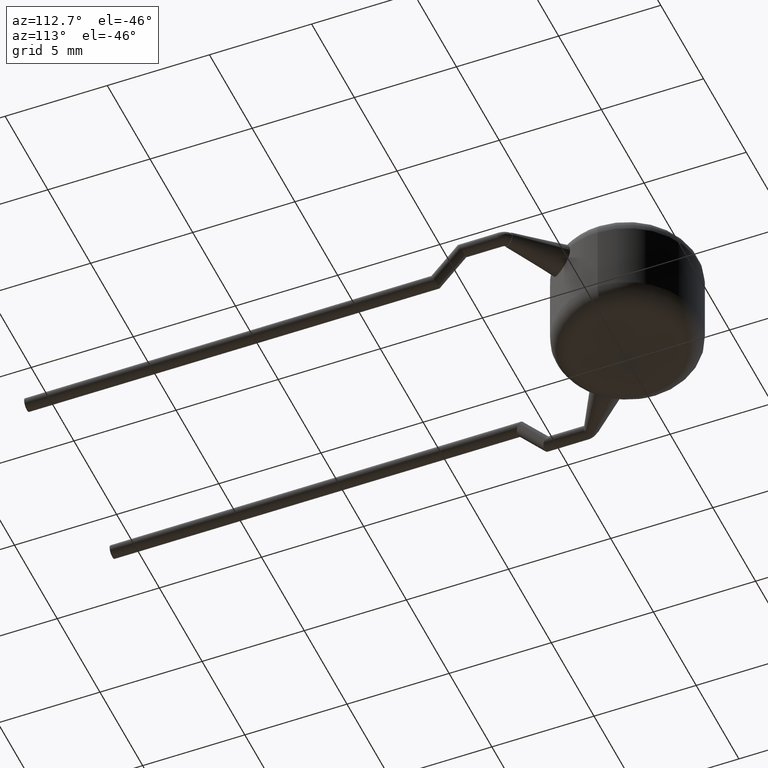
[diagram: clean part render]
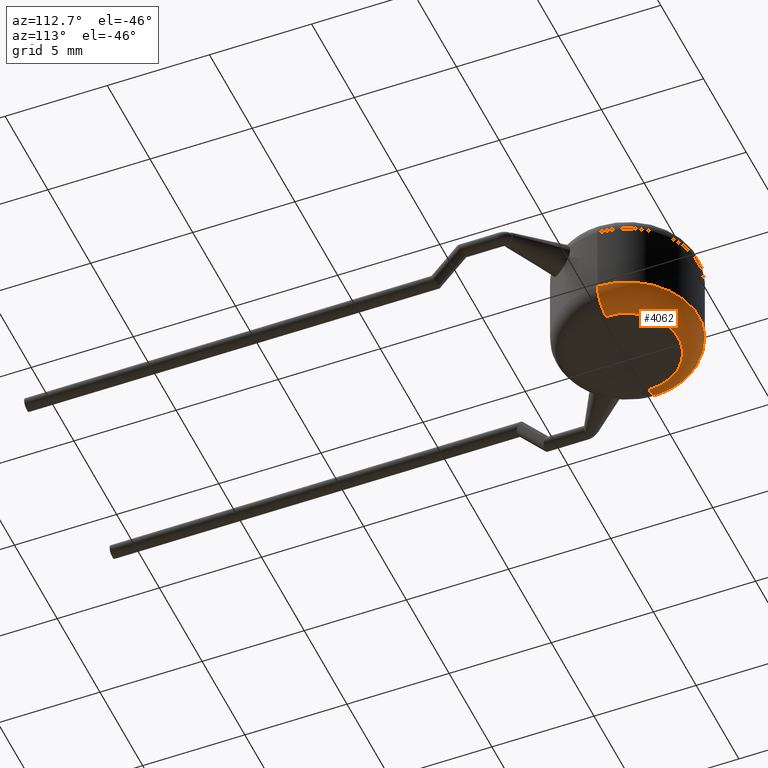
[diagram: same view with one face highlighted and labeled with its STEP entity id]
A machine part, auxiliary view. The second image highlights one B-rep face of the part: STEP entity #4062.
In plain terms, the highlighted toroidal blend (fillet) surface has major radius 2.5 mm and minor (blend) radius 1 mm.
Its self-contained STEP definition (entity closure, byte-faithful):
#36 = CARTESIAN_POINT ( 'NONE',  ( 0.0000000000000000000, 0.0000000000000000000, 0.0000000000000000000 ) ) ;
#196 = ORIENTED_EDGE ( 'NONE', *, *, #448, .T. ) ;
#211 = TOROIDAL_SURFACE ( 'NONE', #3203, 2.499999999999999600, 1.000000000000000000 ) ;
#213 = DIRECTION ( 'NONE',  ( 1.224646799147353200E-016, 1.000000000000000000, -0.0000000000000000000 ) ) ;
#322 = CARTESIAN_POINT ( 'NONE',  ( -3.499999999999999600, 0.0000000000000000000, 1.000000000000000000 ) ) ;
#393 = DIRECTION ( 'NONE',  ( 0.0000000000000000000, 0.0000000000000000000, 1.000000000000000000 ) ) ;
#448 = EDGE_CURVE ( 'NONE', #1702, #606, #4224, .T. ) ;
#498 = EDGE_CURVE ( 'NONE', #858, #606, #1807, .T. ) ;
#606 = VERTEX_POINT ( 'NONE', #322 ) ;
#622 = EDGE_LOOP ( 'NONE', ( #3338, #196, #714, #1692 ) ) ;
#711 = DIRECTION ( 'NONE',  ( 1.000000000000000000, 0.0000000000000000000, 0.0000000000000000000 ) ) ;
#714 = ORIENTED_EDGE ( 'NONE', *, *, #498, .F. ) ;
#858 = VERTEX_POINT ( 'NONE', #1653 ) ;
#1158 = EDGE_CURVE ( 'NONE', #1702, #1400, #3345, .T. ) ;
#1369 = DIRECTION ( 'NONE',  ( 0.0000000000000000000, -1.000000000000000000, 0.0000000000000000000 ) ) ;
#1400 = VERTEX_POINT ( 'NONE', #3944 ) ;
#1404 = FACE_OUTER_BOUND ( 'NONE', #622, .T. ) ;
#1444 = CARTESIAN_POINT ( 'NONE',  ( -2.499999999999999600, 3.061616997868382600E-016, 1.000000000000000000 ) ) ;
#1475 = DIRECTION ( 'NONE',  ( 1.000000000000000000, 0.0000000000000000000, 0.0000000000000000000 ) ) ;
#1644 = DIRECTION ( 'NONE',  ( -0.0000000000000000000, -0.0000000000000000000, -1.000000000000000000 ) ) ;
#1653 = CARTESIAN_POINT ( 'NONE',  ( 3.499999999999999600, 4.286263797015736100E-016, 1.000000000000000000 ) ) ;
#1692 = ORIENTED_EDGE ( 'NONE', *, *, #3980, .F. ) ;
#1702 = VERTEX_POINT ( 'NONE', #3792 ) ;
#1807 = CIRCLE ( 'NONE', #3100, 3.499999999999999600 ) ;
#1969 = DIRECTION ( 'NONE',  ( 1.000000000000000000, 0.0000000000000000000, 0.0000000000000000000 ) ) ;
#2097 = DIRECTION ( 'NONE',  ( 0.0000000000000000000, 0.0000000000000000000, 1.000000000000000000 ) ) ;
#2148 = DIRECTION ( 'NONE',  ( -1.000000000000000000, 1.224646799147353000E-016, 0.0000000000000000000 ) ) ;
#2272 = CARTESIAN_POINT ( 'NONE',  ( 2.499999999999999600, 0.0000000000000000000, 1.000000000000000000 ) ) ;
#2827 = AXIS2_PLACEMENT_3D ( 'NONE', #1444, #213, #2148 ) ;
#2882 = CIRCLE ( 'NONE', #3842, 1.000000000000000000 ) ;
#3049 = DIRECTION ( 'NONE',  ( 0.0000000000000000000, 0.0000000000000000000, -1.000000000000000000 ) ) ;
#3100 = AXIS2_PLACEMENT_3D ( 'NONE', #3477, #2097, #1475 ) ;
#3203 = AXIS2_PLACEMENT_3D ( 'NONE', #4006, #393, #711 ) ;
#3338 = ORIENTED_EDGE ( 'NONE', *, *, #1158, .F. ) ;
#3345 = CIRCLE ( 'NONE', #3774, 2.499999999999999600 ) ;
#3477 = CARTESIAN_POINT ( 'NONE',  ( 0.0000000000000000000, 0.0000000000000000000, 1.000000000000000000 ) ) ;
#3774 = AXIS2_PLACEMENT_3D ( 'NONE', #36, #1644, #1969 ) ;
#3792 = CARTESIAN_POINT ( 'NONE',  ( -2.499999999999999600, 3.673940397442059400E-016, 0.0000000000000000000 ) ) ;
#3842 = AXIS2_PLACEMENT_3D ( 'NONE', #2272, #1369, #3049 ) ;
#3944 = CARTESIAN_POINT ( 'NONE',  ( 2.499999999999999600, 0.0000000000000000000, 0.0000000000000000000 ) ) ;
#3980 = EDGE_CURVE ( 'NONE', #1400, #858, #2882, .T. ) ;
#4006 = CARTESIAN_POINT ( 'NONE',  ( 0.0000000000000000000, 0.0000000000000000000, 1.000000000000000000 ) ) ;
#4062 = ADVANCED_FACE ( 'NONE', ( #1404 ), #211, .T. ) ;
#4224 = CIRCLE ( 'NONE', #2827, 1.000000000000000000 ) ;